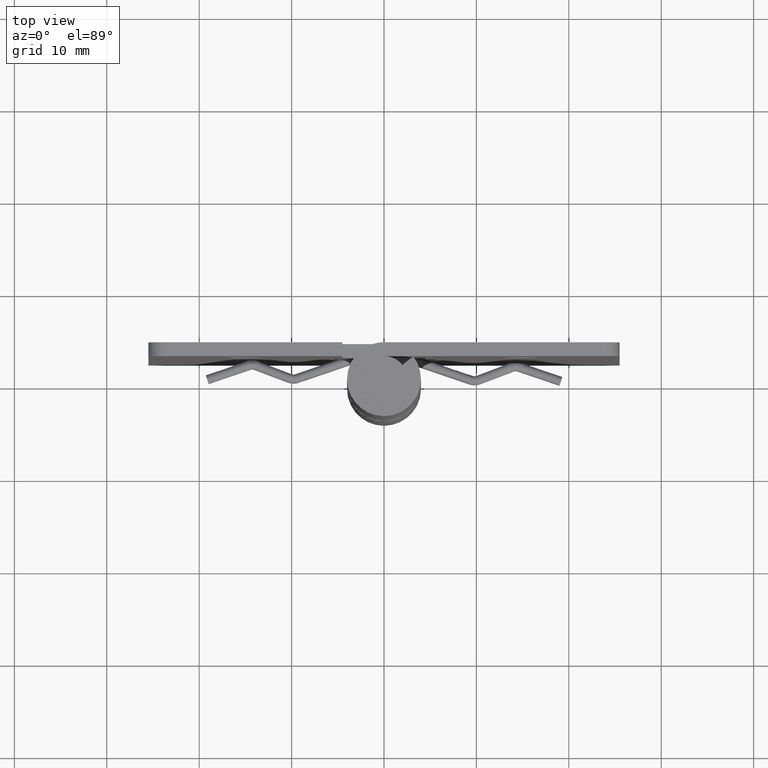
[diagram: clean part render]
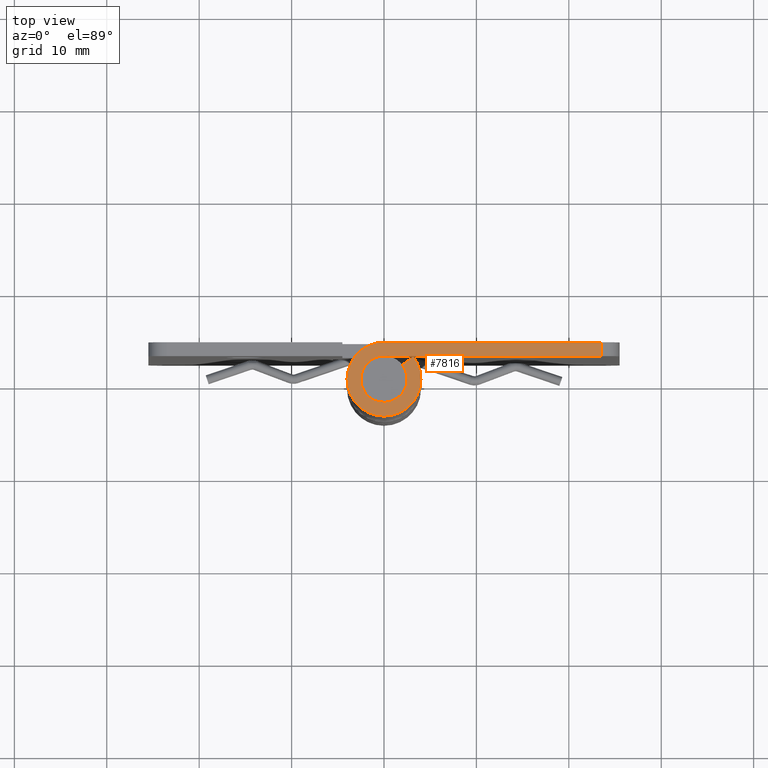
[diagram: same view with one face highlighted and labeled with its STEP entity id]
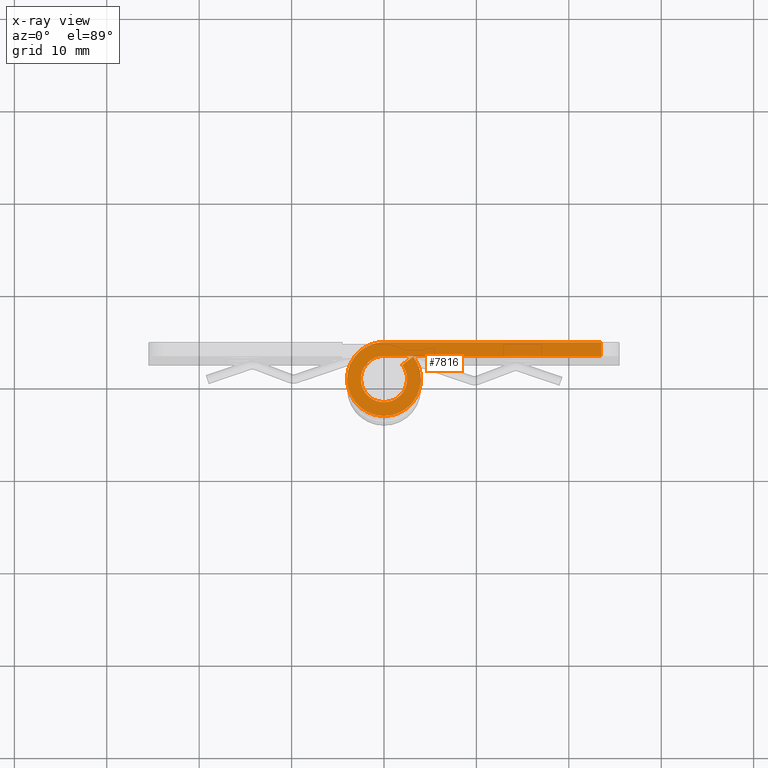
[diagram: x-ray of the same camera — body ghosted, the highlighted face saturated]
A machine part, top view. The second image highlights one B-rep face of the part: STEP entity #7816.
The next image is the same camera in x-ray: the body ghosted, the highlighted face saturated — about 0% of this face is hidden behind the body in this view.
In plain terms, the highlighted face is a freeform B-spline surface patch.
Its self-contained STEP definition (entity closure, byte-faithful):
#7639=CARTESIAN_POINT('',(23.500000000000000,2.499999999999945,59.999985000000002));
#7640=VERTEX_POINT('',#7639);
#7663=CARTESIAN_POINT('',(23.500000000000000,4.0,59.999985000000002));
#7664=VERTEX_POINT('',#7663);
#7678=CARTESIAN_POINT('',(23.500000000000000,4.0,59.999985000000002));
#7679=CARTESIAN_POINT('',(23.500000000000000,2.499999999999945,59.999985000000002));
#7680=QUASI_UNIFORM_CURVE('',1,(#7678,#7679),.UNSPECIFIED.,.F.,.U.);
#7681=EDGE_CURVE('',#7664,#7640,#7680,.T.);
#7747=CARTESIAN_POINT('',(-5.370150154163987,-4.385703327027326,59.999985000000002));
#7748=CARTESIAN_POINT('',(24.873460375507729,-4.385703327027326,59.999985000000002));
#7749=CARTESIAN_POINT('',(-5.370150154163987,4.398939083410842,59.999985000000002));
#7750=CARTESIAN_POINT('',(24.873460375507729,4.398939083410842,59.999985000000002));
#7751=B_SPLINE_SURFACE_WITH_KNOTS('',1,1,((#7747,#7749),(#7748,#7750)),.UNSPECIFIED.,.F.,.F.,.U.,(2,2),(2,2),(0.0,30.243610529671720),(0.0,8.784642410438167),.UNSPECIFIED.);
#7752=CARTESIAN_POINT('',(0.0,2.500000000000000,59.999985000000002));
#7753=VERTEX_POINT('',#7752);
#7754=CARTESIAN_POINT('',(23.500000000000000,2.499999999999945,59.999985000000002));
#7755=CARTESIAN_POINT('',(0.0,2.500000000000000,59.999985000000002));
#7756=QUASI_UNIFORM_CURVE('',1,(#7754,#7755),.UNSPECIFIED.,.F.,.U.);
#7757=EDGE_CURVE('',#7640,#7753,#7756,.T.);
#7758=ORIENTED_EDGE('',*,*,#7757,.F.);
#7759=ORIENTED_EDGE('',*,*,#7681,.F.);
#7760=CARTESIAN_POINT('',(0.0,4.0,59.999985000000002));
#7761=VERTEX_POINT('',#7760);
#7762=CARTESIAN_POINT('',(0.0,4.0,59.999985000000002));
#7763=CARTESIAN_POINT('',(23.500000000000000,4.0,59.999985000000002));
#7764=QUASI_UNIFORM_CURVE('',1,(#7762,#7763),.UNSPECIFIED.,.F.,.U.);
#7765=EDGE_CURVE('',#7761,#7664,#7764,.T.);
#7766=ORIENTED_EDGE('',*,*,#7765,.F.);
#7767=CARTESIAN_POINT('',(3.161882350752475,2.450000000000000,59.999985000000002));
#7768=VERTEX_POINT('',#7767);
#7769=CARTESIAN_POINT('',(3.161882350752474,2.450000000000002,59.999985000000002));
#7770=CARTESIAN_POINT('',(5.108698207643565,-0.062490897171013,59.999985000000002));
#7771=CARTESIAN_POINT('',(3.101007199225137,-2.526609259532204,59.999985000000002));
#7772=CARTESIAN_POINT('',(1.093316190806710,-4.990727621893395,59.999985000000002));
#7773=CARTESIAN_POINT('',(-1.760681686165899,-3.591656999213595,59.999985000000002));
#7774=CARTESIAN_POINT('',(-4.614679563138510,-2.192586376533794,59.999985000000002));
#7775=CARTESIAN_POINT('',(-3.896577215766061,0.903706811733105,59.999985000000002));
#7776=CARTESIAN_POINT('',(-3.178474868393612,4.0,59.999985000000002));
#7777=CARTESIAN_POINT('',(0.0,4.0,59.999985000000002));
#7785=(BOUNDED_CURVE()B_SPLINE_CURVE(2,(#7769,#7770,#7771,#7772,#7773,#7774,#7775,#7776,#7777),.UNSPECIFIED.,.F.,.U.)B_SPLINE_CURVE_WITH_KNOTS((3,2,2,2,3),(0.0,0.250000000000000,0.500000000000000,0.750000000000000,1.0),.UNSPECIFIED.)CURVE()GEOMETRIC_REPRESENTATION_ITEM()RATIONAL_B_SPLINE_CURVE((1.0,0.782919760554450,1.0,0.782919760554450,1.0,0.782919760554450,1.0,0.782919760554450,1.0))REPRESENTATION_ITEM(''));
#7786=EDGE_CURVE('',#7768,#7761,#7785,.T.);
#7787=ORIENTED_EDGE('',*,*,#7786,.F.);
#7788=CARTESIAN_POINT('',(1.976176469220295,1.531250000000000,59.999985000000002));
#7789=VERTEX_POINT('',#7788);
#7790=CARTESIAN_POINT('',(1.976176469220295,1.531250000000000,59.999985000000002));
#7791=CARTESIAN_POINT('',(3.161882350752475,2.450000000000000,59.999985000000002));
#7792=QUASI_UNIFORM_CURVE('',1,(#7790,#7791),.UNSPECIFIED.,.F.,.U.);
#7793=EDGE_CURVE('',#7789,#7768,#7792,.T.);
#7794=ORIENTED_EDGE('',*,*,#7793,.F.);
#7795=CARTESIAN_POINT('',(1.976176469220296,1.531250000000002,59.999985000000002));
#7796=CARTESIAN_POINT('',(3.192936379777227,-0.039056810731882,59.999984999999988));
#7797=CARTESIAN_POINT('',(1.938129499515711,-1.579130787207628,59.999985000000002));
#7798=CARTESIAN_POINT('',(0.683322619254193,-3.119204763683372,59.999984999999988));
#7799=CARTESIAN_POINT('',(-1.100426053853687,-2.244785624508497,59.999985000000002));
#7800=CARTESIAN_POINT('',(-2.884174726961570,-1.370366485333621,59.999984999999988));
#7801=CARTESIAN_POINT('',(-2.435360759853788,0.564816757333191,59.999985000000002));
#7802=CARTESIAN_POINT('',(-1.986546792746009,2.500000000000000,59.999984999999988));
#7803=CARTESIAN_POINT('',(0.0,2.500000000000000,59.999985000000002));
#7811=(BOUNDED_CURVE()B_SPLINE_CURVE(2,(#7795,#7796,#7797,#7798,#7799,#7800,#7801,#7802,#7803),.UNSPECIFIED.,.F.,.U.)B_SPLINE_CURVE_WITH_KNOTS((3,2,2,2,3),(0.0,0.250000000000000,0.500000000000000,0.750000000000000,1.0),.UNSPECIFIED.)CURVE()GEOMETRIC_REPRESENTATION_ITEM()RATIONAL_B_SPLINE_CURVE((1.0,0.782919760554450,1.0,0.782919760554450,1.0,0.782919760554450,1.0,0.782919760554450,1.0))REPRESENTATION_ITEM(''));
#7812=EDGE_CURVE('',#7789,#7753,#7811,.T.);
#7813=ORIENTED_EDGE('',*,*,#7812,.T.);
#7814=EDGE_LOOP('',(#7758,#7759,#7766,#7787,#7794,#7813));
#7815=FACE_OUTER_BOUND('',#7814,.T.);
#7816=ADVANCED_FACE('',(#7815),#7751,.T.);